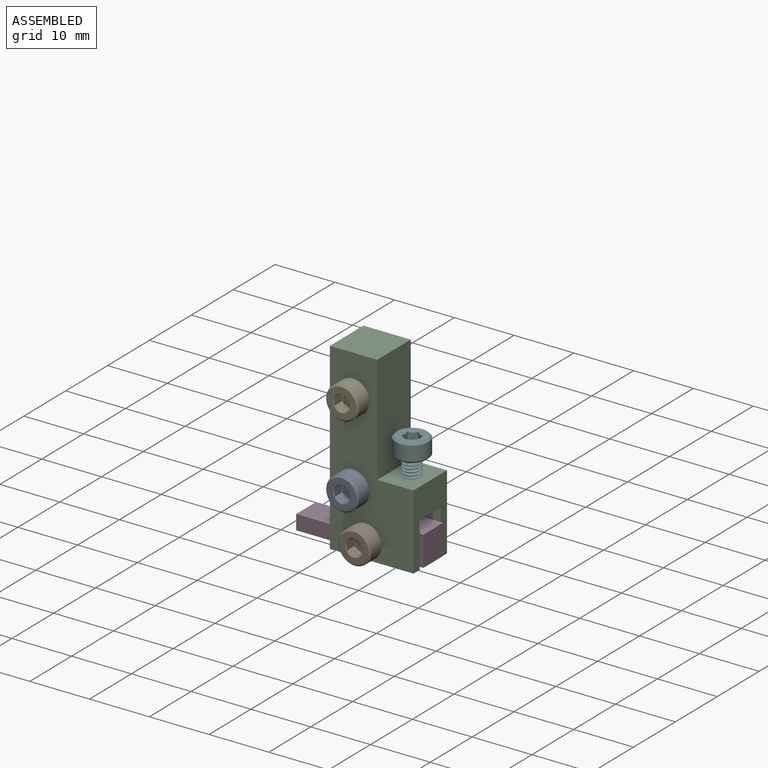
[diagram: assembled view]
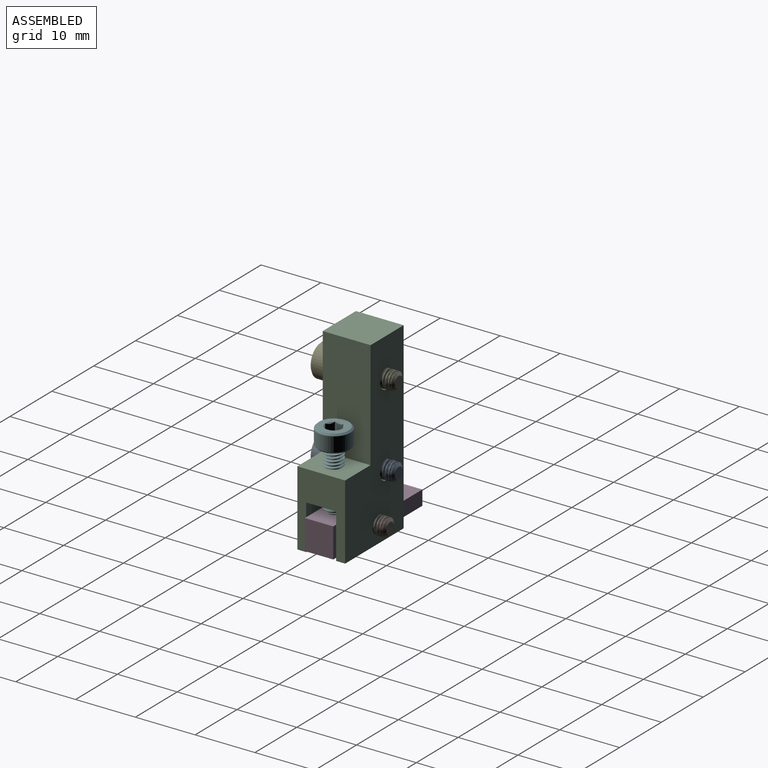
[diagram: assembled view, second angle]
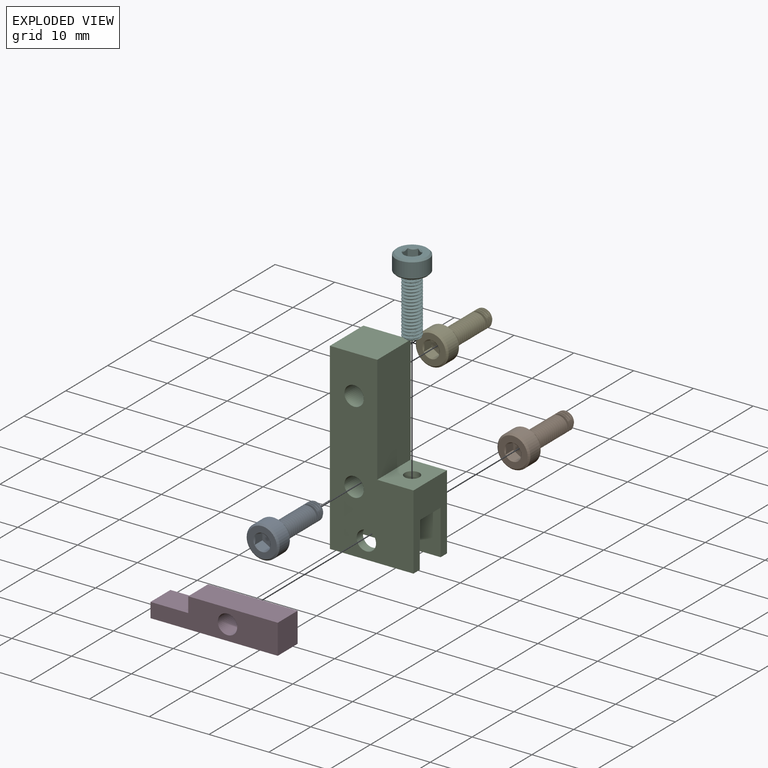
[diagram: exploded view]
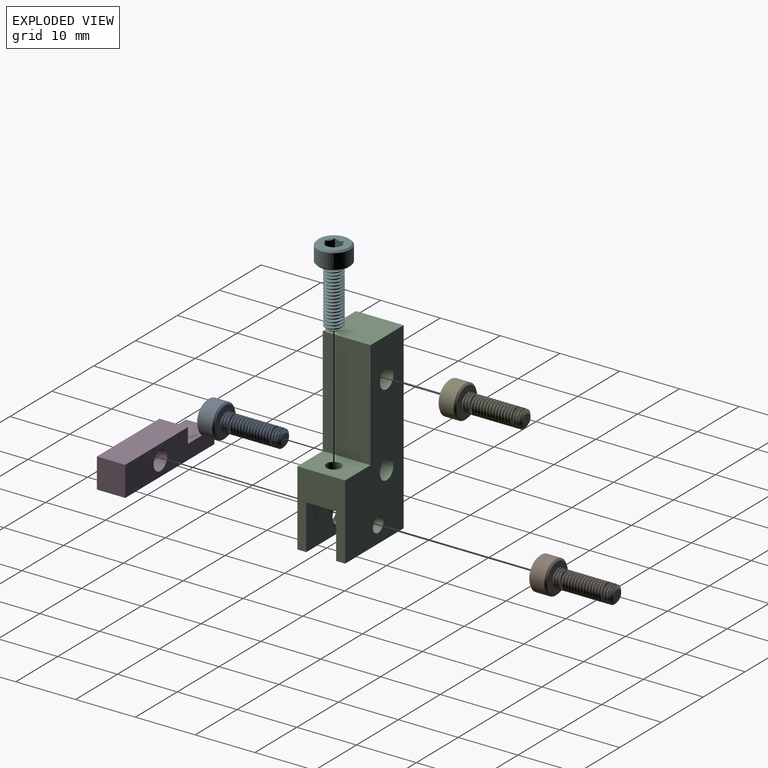
[diagram: exploded view, second angle]
ASSEMBLY  parts=6 mates=5
PART A: 24 faces, bbox 6x6x13.6 mm
  f0: cone r=2.75mm half-angle=45deg, axis (0,0,-1), area 6.4mm2, adj f3,f11
  f1: cone r=2.48mm half-angle=45deg, axis (0,0,1), area 6.4mm2, adj f3,f10
  f2: cone r=1.44mm half-angle=45deg, axis (0,0,-1), area 0.2mm2, adj f10,f22
  f3: cylinder r=2.75mm len=5.5mm, axis (0,0,1), area 42.3mm2, adj f0,f1
  f4: cone r=0.92mm half-angle=55deg, axis (0,0,-1), area 3.7mm2, adj f5,f6,f7,f8,f9
  f5: cylinder r=1.18mm len=9.82mm, axis (0,0,-1), area 9.1mm2, adj f4,f7,f8,f11
  f6: cylinder r=1.5mm len=9.59mm, axis (0,0,1), area 11.3mm2, adj f4,f7,f8,f11
  f7: bspline ~10.2x3mm, area 61.2mm2, adj f4,f5,f6,f11
  f8: bspline ~10.01x2.95mm, area 61.2mm2, adj f4,f5,f6,f11
  f9: plane 1.84x1.84mm, normal (0,0,1), area 2.7mm2, adj f4
  f10: plane 5.42x5.42mm, normal (0,0,-1), area 12.7mm2, adj f1,f2,f12,f13,f14,f15,f16
  f11: plane 5.15x5.15mm, normal (0,0,1), area 13.6mm2, adj f0,f5,f6,f7,f8
  f12: cone r=1.44mm half-angle=45deg, axis (0,0,-1), area 0mm2, adj f10,f18
  f13: cone r=1.44mm half-angle=45deg, axis (0,0,-1), area 0mm2, adj f10,f19
  f14: cone r=1.44mm half-angle=45deg, axis (0,0,-1), area 0mm2, adj f10,f20
  f15: cone r=1.44mm half-angle=45deg, axis (0,0,-1), area 0mm2, adj f10,f21
  f16: cone r=1.44mm half-angle=45deg, axis (0,0,-1), area 0mm2, adj f10,f23
  f17: plane 2.89x2.5mm, normal (0,0,-1), area 5.4mm2, adj f18,f19,f20,f21,f22,f23
  f18: plane 2.42x1.8mm, normal (-0.5,-0.87,0), area 2.5mm2, adj f12,f17,f19,f23
  f19: plane 2.42x1.99mm, normal (-1,0,0), area 2.5mm2, adj f13,f17,f18,f20
  f20: plane 2.42x1.8mm, normal (-0.5,0.87,0), area 2.5mm2, adj f14,f17,f19,f21
  f21: plane 2.42x1.8mm, normal (0.5,0.87,0), area 2.5mm2, adj f15,f17,f20,f22
  f22: plane 2.02x1.58mm, normal (1,0,0), area 2.5mm2, adj f2,f17,f21,f23
  f23: plane 2.42x1.8mm, normal (0.5,-0.87,0), area 2.5mm2, adj f16,f17,f18,f22
PART B: same geometry as A
PART C: 17 faces, bbox 14x8x30.7 mm
  f0: plane 13.99x1.5mm, normal (0,0,-1), area 21mm2, adj f1,f4,f7,f9
  f1: plane 12.57x8mm, normal (1,0,0), area 63.1mm2, adj f0,f2,f5,f6,f7,f8,f9,f10
  f2: plane 8x6.06mm, normal (0,0,1), area 43.6mm2, adj f1,f3,f6,f7,f15
  f3: plane 18.14x8mm, normal (1,0,0), area 145.1mm2, adj f2,f6,f7,f12
  f4: plane 30.71x8mm, normal (-1,0,0), area 208.2mm2, adj f0,f5,f6,f7,f8,f9,f10,f12
  f5: plane 13.99x1.5mm, normal (0,0,-1), area 21mm2, adj f1,f4,f6,f8
  f6: plane 30.71x13.99mm, normal (0,-1,0), area 294.6mm2, adj f1,f2,f3,f4,f5,f11,f12,f13
  f7: plane 30.71x13.99mm, normal (0,1,0), area 298mm2, adj f0,f1,f2,f3,f4,f12,f13,f14
  f8: plane 13.99x7.5mm, normal (0,1,0), area 96.6mm2, adj f1,f4,f5,f10,f11
  f9: plane 13.99x7.5mm, normal (0,-1,0), area 100mm2, adj f0,f1,f4,f10,f16
  f10: plane 13.99x5mm, normal (0,0,-1), area 65mm2, adj f1,f4,f8,f9,f15
  f11: cylinder r=1.62mm len=3.25mm, axis (0,1,0), area 15.3mm2, adj f6,f8
  f12: plane 8x7.92mm, normal (0,0,1), area 63.4mm2, adj f3,f4,f6,f7
  f13: cylinder r=1.62mm len=8mm, axis (0,-1,0), area 81.7mm2, adj f6,f7
  f14: cylinder r=1.62mm len=8mm, axis (0,-1,0), area 81.7mm2, adj f6,f7
  f15: cylinder r=1.25mm len=5.07mm, axis (0,0,1), area 39.8mm2, adj f2,f10
  f16: cylinder r=1.25mm len=2.5mm, axis (0,-1,0), area 11.8mm2, adj f7,f9
PART D: 9 faces, bbox 21.3x4.8x5 mm
  f0: plane 14.98x4.75mm, normal (0,0,1), area 71.1mm2, adj f4,f5,f6,f8
  f1: plane 4.75x2.46mm, normal (-1,0,0), area 11.7mm2, adj f2,f5,f6,f7
  f2: plane 21.28x4.75mm, normal (0,0,-1), area 101.1mm2, adj f1,f4,f5,f6
  f3: cylinder r=1.62mm len=4.75mm, axis (0,1,0), area 48.5mm2, adj f5,f6
  f4: plane 5x4.75mm, normal (1,0,0), area 23.8mm2, adj f0,f2,f5,f6
  f5: plane 21.28x5mm, normal (0,-1,0), area 82.1mm2, adj f0,f1,f2,f3,f4,f7,f8
  f6: plane 21.28x5mm, normal (0,1,0), area 82.1mm2, adj f0,f1,f2,f3,f4,f7,f8
  f7: plane 6.3x4.75mm, normal (0,0,1), area 29.9mm2, adj f1,f5,f6,f8
  f8: plane 4.75x2.54mm, normal (-1,0,0), area 12.1mm2, adj f0,f5,f6,f7
PART E: same geometry as A
PART F: same geometry as A
PLACE A rot(axis=(-1,0,0),90deg) t=(-6.16,7.73,0.49)mm
PLACE B rot(axis=(-1,0,0),90deg) t=(-4.11,7.73,-7.08)mm
PLACE C t=(-8.92,5.73,8.97)mm
PLACE D t=(-8.92,5.73,8.97)mm
PLACE E rot(axis=(-1,0,0),90deg) t=(-6.16,7.73,14.24)mm
PLACE F rot(axis=(1,0,0),180deg) t=(0.74,1.73,-4.4)mm
MATE fastened A.f0 <-> C.f14  axis (0,1,0) through (-6.16,-2.27,0.49)mm
MATE fastened E.f0 <-> C.f13  axis (0,1,0) through (-6.16,-2.27,14.24)mm
MATE fastened D.f3 <-> C.f16  axis (0,-1,0) through (-4.11,-0.64,-7.08)mm
MATE fastened F.f0 <-> C.f15  axis (0,0,-1) through (0.74,1.73,5.6)mm
MATE fastened B.f0 <-> C.f16  axis (0,1,0) through (-4.11,-2.27,-7.08)mm
